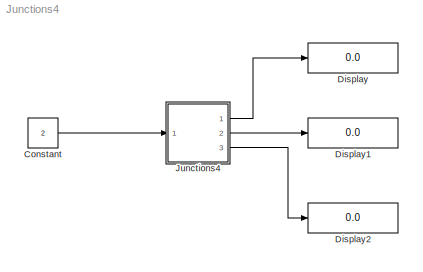
MODEL Junctions4
KIND model
BLOCK [Constant] Constant
  Value = 2
BLOCK [Display] Display
  Decimation = 1
  Format = long
  Ports = [1]
BLOCK [Display] Display1
  Decimation = 1
  Format = long
  Ports = [1]
BLOCK [Display] Display2
  Decimation = 1
  Format = long
  Ports = [1]
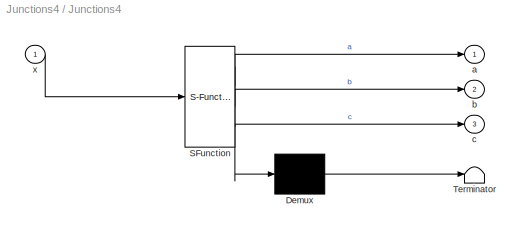
BLOCK [SubSystem] Junctions4
  MaskDescription = Stateflow diagram
  MaskDisplay = plot(sf('Private','sfblk','xIcon'),sf('Private','sfblk','yIcon'));text(0.5,0,sf('Private', 'sfblk', 'tIcon'),'HorizontalAl','Center','VerticalAl','Bottom');
  MaskIconFrame = off
  MaskIconOpaque = off
  MaskIconRotate = none
  MaskIconUnits = autoscale
  MaskSelfModifiable = on
  MaskType = Stateflow
  MinAlgLoopOccurrences = off
  Ports = [1, 3]
  RTWSystemCode = Auto
  TreatAsAtomicUnit = off
BLOCK [Demux] Junctions4/ Demux 
  Outputs = 1
  Ports = [1, 1]
BLOCK [S-Function] Junctions4/ SFunction 
  FunctionName = sf_sfun
  PortCounts = [1 4]
  Ports = [1, 4]
  Tag = Stateflow S-Function Junctions4 1
BLOCK [Terminator] Junctions4/ Terminator 
BLOCK [Outport] Junctions4/a
  IconDisplay = Port number
BLOCK [Outport] Junctions4/b
  IconDisplay = Port number
  Port = 2
BLOCK [Outport] Junctions4/c
  IconDisplay = Port number
  Port = 3
BLOCK [Inport] Junctions4/x
  IconDisplay = Port number
  LatchInput = off
  Port = 1
LINE Constant:1 -> Junctions4:1
LINE Junctions4/ Demux :1 -> Junctions4/ Terminator :1
LINE Junctions4/ SFunction :1 -> Junctions4/ Demux :1
LINE Junctions4/ SFunction :2 -> Junctions4/a:1
LINE Junctions4/ SFunction :3 -> Junctions4/b:1
LINE Junctions4/ SFunction :4 -> Junctions4/c:1
LINE Junctions4/x:1 -> Junctions4/ SFunction :1
LINE Junctions4:1 -> Display:1
LINE Junctions4:2 -> Display1:1
LINE Junctions4:3 -> Display2:1
CHART Junctions4 states=3 transitions=8
  STATE_LABEL 'A/\\nen:c+=1\\nex:c+=10'
  STATE_LABEL 'B/\\nen:c+=100\\ndu:c+=1000'
  STATE_LABEL 'TOP'
